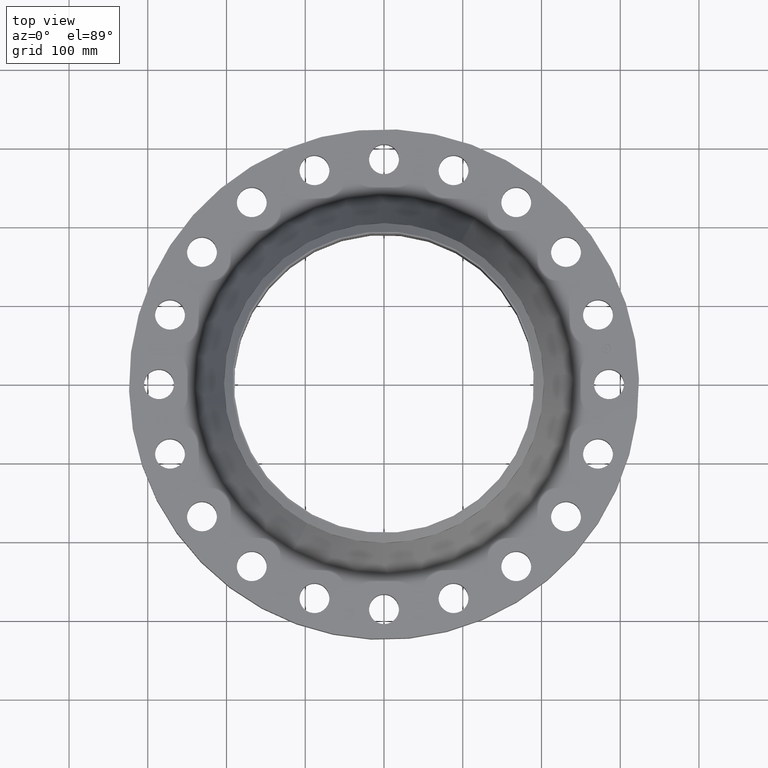
[diagram: clean part render]
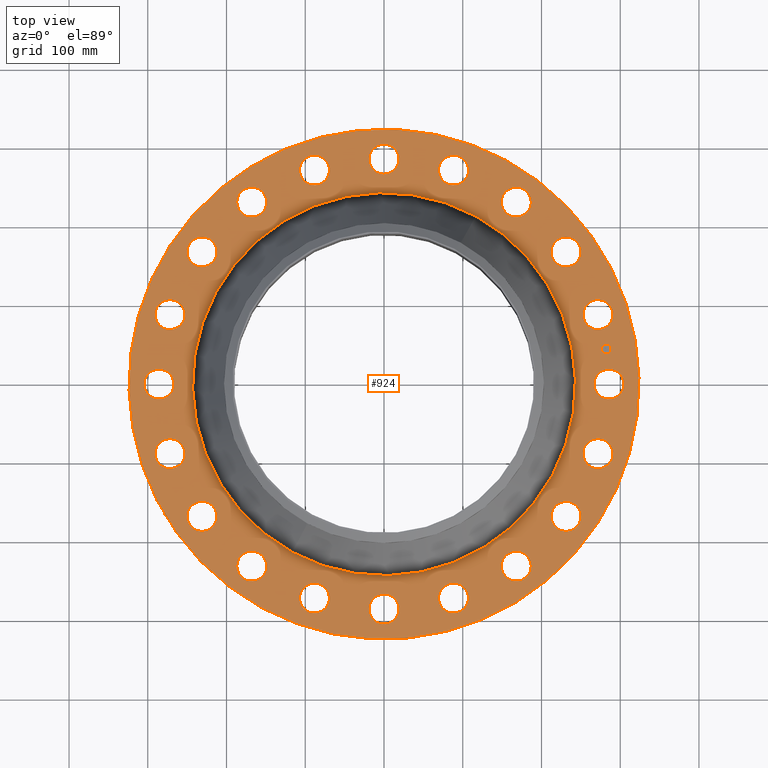
[diagram: same view with one face highlighted and labeled with its STEP entity id]
A machine part, top view. The second image highlights one B-rep face of the part: STEP entity #924.
In plain terms, the highlighted planar face has unit normal (0, 0, -1).
Its self-contained STEP definition (entity closure, byte-faithful):
#65=AXIS2_PLACEMENT_3D('Circle Axis2P3D',#63,#64,$) ;
#522=AXIS2_PLACEMENT_3D('Plane Axis2P3D',#519,#520,#521) ;
#526=AXIS2_PLACEMENT_3D('Circle Axis2P3D',#524,#525,$) ;
#535=AXIS2_PLACEMENT_3D('Circle Axis2P3D',#533,#534,$) ;
#548=AXIS2_PLACEMENT_3D('Circle Axis2P3D',#546,#547,$) ;
#557=AXIS2_PLACEMENT_3D('Circle Axis2P3D',#555,#556,$) ;
#566=AXIS2_PLACEMENT_3D('Circle Axis2P3D',#564,#565,$) ;
#575=AXIS2_PLACEMENT_3D('Circle Axis2P3D',#573,#574,$) ;
#584=AXIS2_PLACEMENT_3D('Circle Axis2P3D',#582,#583,$) ;
#593=AXIS2_PLACEMENT_3D('Circle Axis2P3D',#591,#592,$) ;
#602=AXIS2_PLACEMENT_3D('Circle Axis2P3D',#600,#601,$) ;
#611=AXIS2_PLACEMENT_3D('Circle Axis2P3D',#609,#610,$) ;
#620=AXIS2_PLACEMENT_3D('Circle Axis2P3D',#618,#619,$) ;
#629=AXIS2_PLACEMENT_3D('Circle Axis2P3D',#627,#628,$) ;
#638=AXIS2_PLACEMENT_3D('Circle Axis2P3D',#636,#637,$) ;
#647=AXIS2_PLACEMENT_3D('Circle Axis2P3D',#645,#646,$) ;
#656=AXIS2_PLACEMENT_3D('Circle Axis2P3D',#654,#655,$) ;
#665=AXIS2_PLACEMENT_3D('Circle Axis2P3D',#663,#664,$) ;
#674=AXIS2_PLACEMENT_3D('Circle Axis2P3D',#672,#673,$) ;
#683=AXIS2_PLACEMENT_3D('Circle Axis2P3D',#681,#682,$) ;
#692=AXIS2_PLACEMENT_3D('Circle Axis2P3D',#690,#691,$) ;
#701=AXIS2_PLACEMENT_3D('Circle Axis2P3D',#699,#700,$) ;
#710=AXIS2_PLACEMENT_3D('Circle Axis2P3D',#708,#709,$) ;
#719=AXIS2_PLACEMENT_3D('Circle Axis2P3D',#717,#718,$) ;
#728=AXIS2_PLACEMENT_3D('Circle Axis2P3D',#726,#727,$) ;
#737=AXIS2_PLACEMENT_3D('Circle Axis2P3D',#735,#736,$) ;
#746=AXIS2_PLACEMENT_3D('Circle Axis2P3D',#744,#745,$) ;
#755=AXIS2_PLACEMENT_3D('Circle Axis2P3D',#753,#754,$) ;
#764=AXIS2_PLACEMENT_3D('Circle Axis2P3D',#762,#763,$) ;
#773=AXIS2_PLACEMENT_3D('Circle Axis2P3D',#771,#772,$) ;
#782=AXIS2_PLACEMENT_3D('Circle Axis2P3D',#780,#781,$) ;
#791=AXIS2_PLACEMENT_3D('Circle Axis2P3D',#789,#790,$) ;
#800=AXIS2_PLACEMENT_3D('Circle Axis2P3D',#798,#799,$) ;
#809=AXIS2_PLACEMENT_3D('Circle Axis2P3D',#807,#808,$) ;
#818=AXIS2_PLACEMENT_3D('Circle Axis2P3D',#816,#817,$) ;
#827=AXIS2_PLACEMENT_3D('Circle Axis2P3D',#825,#826,$) ;
#836=AXIS2_PLACEMENT_3D('Circle Axis2P3D',#834,#835,$) ;
#845=AXIS2_PLACEMENT_3D('Circle Axis2P3D',#843,#844,$) ;
#854=AXIS2_PLACEMENT_3D('Circle Axis2P3D',#852,#853,$) ;
#863=AXIS2_PLACEMENT_3D('Circle Axis2P3D',#861,#862,$) ;
#872=AXIS2_PLACEMENT_3D('Circle Axis2P3D',#870,#871,$) ;
#881=AXIS2_PLACEMENT_3D('Circle Axis2P3D',#879,#880,$) ;
#890=AXIS2_PLACEMENT_3D('Circle Axis2P3D',#888,#889,$) ;
#899=AXIS2_PLACEMENT_3D('Circle Axis2P3D',#897,#898,$) ;
#908=AXIS2_PLACEMENT_3D('Circle Axis2P3D',#906,#907,$) ;
#917=AXIS2_PLACEMENT_3D('Circle Axis2P3D',#915,#916,$) ;
#46=CARTESIAN_POINT('Vertex',(10.5918130786,0.359569153955,2.5)) ;
#60=CARTESIAN_POINT('Vertex',(11.9081869214,-0.359569153921,2.5)) ;
#63=CARTESIAN_POINT('Axis2P3D Location',(11.25,0.,2.5)) ;
#94=CARTESIAN_POINT('Control Point',(11.9081869214,-0.359569153955,2.5)) ;
#95=CARTESIAN_POINT('Control Point',(11.8517059308,-0.462956913806,2.5)) ;
#96=CARTESIAN_POINT('Control Point',(11.774924801,-0.555254657081,2.5)) ;
#97=CARTESIAN_POINT('Control Point',(11.6807306633,-0.631129841291,2.5)) ;
#98=CARTESIAN_POINT('Control Point',(11.4676671885,-0.741858414487,2.5)) ;
#99=CARTESIAN_POINT('Control Point',(11.2285535531,-0.763802219702,2.5)) ;
#100=CARTESIAN_POINT('Control Point',(11.1082963823,-0.750848763496,2.5)) ;
#101=CARTESIAN_POINT('Control Point',(10.8793408295,-0.678487060596,2.5)) ;
#102=CARTESIAN_POINT('Control Point',(10.6947453429,-0.524924800992,2.50000000001)) ;
#103=CARTESIAN_POINT('Control Point',(10.6188701587,-0.430730663336,2.50000000001)) ;
#104=CARTESIAN_POINT('Control Point',(10.5081415855,-0.217667188504,2.50000000001)) ;
#105=CARTESIAN_POINT('Control Point',(10.4861977803,0.021446446913,2.50000000001)) ;
#106=CARTESIAN_POINT('Control Point',(10.4991512365,0.141703617676,2.50000000001)) ;
#107=CARTESIAN_POINT('Control Point',(10.535332088,0.256181394104,2.50000000001)) ;
#108=CARTESIAN_POINT('Control Point',(10.5918130786,0.359569153955,2.50000000001)) ;
#519=CARTESIAN_POINT('Axis2P3D Location',(0.,12.7500000001,2.50000000001)) ;
#524=CARTESIAN_POINT('Axis2P3D Location',(-1.28099106126E-011,1.16685663756E-011,2.50000000001)) ;
#528=CARTESIAN_POINT('Vertex',(6.11267561726,11.1891776642,2.5)) ;
#530=CARTESIAN_POINT('Vertex',(-6.11267561726,-11.1891776642,2.5)) ;
#533=CARTESIAN_POINT('Axis2P3D Location',(1.28099106126E-011,-2.33192293122E-012,2.50000000001)) ;
#546=CARTESIAN_POINT('Axis2P3D Location',(4.36631308537E-011,-1.91880107603E-011,2.50000000001)) ;
#550=CARTESIAN_POINT('Vertex',(-4.58977930648,-8.40153466588,2.50000000001)) ;
#552=CARTESIAN_POINT('Vertex',(4.58977930648,8.40153466588,2.50000000001)) ;
#555=CARTESIAN_POINT('Axis2P3D Location',(-4.36631308537E-011,2.85246542047E-011,2.50000000001)) ;
#564=CARTESIAN_POINT('Axis2P3D Location',(10.6993858084,-3.47644118672,2.50000000001)) ;
#568=CARTESIAN_POINT('Vertex',(11.2142457897,-4.02180271784,2.50000000001)) ;
#570=CARTESIAN_POINT('Vertex',(10.1845258271,-2.93107965561,2.5)) ;
#573=CARTESIAN_POINT('Axis2P3D Location',(10.6993858084,-3.47644118672,2.50000000001)) ;
#582=CARTESIAN_POINT('Axis2P3D Location',(9.10144118678,-6.61258408832,2.50000000001)) ;
#586=CARTESIAN_POINT('Vertex',(9.42257614579,-7.29035421018,2.5)) ;
#588=CARTESIAN_POINT('Vertex',(8.78030622772,-5.93481396646,2.5)) ;
#591=CARTESIAN_POINT('Axis2P3D Location',(9.10144118675,-6.61258408833,2.50000000001)) ;
#600=CARTESIAN_POINT('Axis2P3D Location',(6.61258408829,-9.10144118677,2.50000000001)) ;
#604=CARTESIAN_POINT('Vertex',(6.70855909777,-9.84527503752,2.50000000001)) ;
#606=CARTESIAN_POINT('Vertex',(6.51660907886,-8.35760733597,2.5)) ;
#609=CARTESIAN_POINT('Axis2P3D Location',(6.61258408837,-9.10144118675,2.50000000001)) ;
#618=CARTESIAN_POINT('Axis2P3D Location',(3.47644118673,-10.6993858084,2.50000000001)) ;
#622=CARTESIAN_POINT('Vertex',(3.33786154401,-11.4364717482,2.50000000001)) ;
#624=CARTESIAN_POINT('Vertex',(3.61502082946,-9.96229986862,2.5)) ;
#627=CARTESIAN_POINT('Axis2P3D Location',(3.47644118673,-10.6993858084,2.50000000001)) ;
#636=CARTESIAN_POINT('Axis2P3D Location',(4.36652988483E-011,-11.25,2.50000000001)) ;
#640=CARTESIAN_POINT('Vertex',(-0.359569153921,-11.9081869214,2.5)) ;
#642=CARTESIAN_POINT('Vertex',(0.359569153955,-10.5918130786,2.5)) ;
#645=CARTESIAN_POINT('Axis2P3D Location',(-1.281158906E-011,-11.25,2.50000000001)) ;
#654=CARTESIAN_POINT('Axis2P3D Location',(-3.47644118673,-10.6993858084,2.50000000001)) ;
#658=CARTESIAN_POINT('Vertex',(-4.02180271788,-11.2142457897,2.50000000001)) ;
#660=CARTESIAN_POINT('Vertex',(-2.93107965561,-10.1845258271,2.5)) ;
#663=CARTESIAN_POINT('Axis2P3D Location',(-3.47644118673,-10.6993858084,2.50000000001)) ;
#672=CARTESIAN_POINT('Axis2P3D Location',(-6.61258408834,-9.10144118674,2.50000000001)) ;
#676=CARTESIAN_POINT('Vertex',(-7.29035421018,-9.42257614579,2.5)) ;
#678=CARTESIAN_POINT('Vertex',(-5.93481396646,-8.78030622772,2.5)) ;
#681=CARTESIAN_POINT('Axis2P3D Location',(-6.61258408832,-9.10144118678,2.50000000001)) ;
#690=CARTESIAN_POINT('Axis2P3D Location',(-9.10144118676,-6.61258408836,2.50000000001)) ;
#694=CARTESIAN_POINT('Vertex',(-9.84527503756,-6.7085590978,2.50000000001)) ;
#696=CARTESIAN_POINT('Vertex',(-8.35760733597,-6.51660907886,2.5)) ;
#699=CARTESIAN_POINT('Axis2P3D Location',(-9.10144118677,-6.61258408829,2.50000000001)) ;
#708=CARTESIAN_POINT('Axis2P3D Location',(-10.6993858084,-3.47644118672,2.50000000001)) ;
#712=CARTESIAN_POINT('Vertex',(-11.4364717482,-3.33786154396,2.50000000001)) ;
#714=CARTESIAN_POINT('Vertex',(-9.96229986862,-3.61502082946,2.5)) ;
#717=CARTESIAN_POINT('Axis2P3D Location',(-10.6993858084,-3.47644118672,2.50000000001)) ;
#726=CARTESIAN_POINT('Axis2P3D Location',(-11.25,1.16685663756E-011,2.50000000001)) ;
#730=CARTESIAN_POINT('Vertex',(-11.9081869214,0.359569153921,2.5)) ;
#732=CARTESIAN_POINT('Vertex',(-10.5918130786,-0.359569153955,2.5)) ;
#735=CARTESIAN_POINT('Axis2P3D Location',(-11.25,1.16663284457E-011,2.50000000001)) ;
#744=CARTESIAN_POINT('Axis2P3D Location',(-10.6993858084,3.47644118673,2.50000000001)) ;
#748=CARTESIAN_POINT('Vertex',(-11.2142457897,4.02180271785,2.50000000001)) ;
#750=CARTESIAN_POINT('Vertex',(-10.1845258271,2.93107965561,2.5)) ;
#753=CARTESIAN_POINT('Axis2P3D Location',(-10.6993858084,3.47644118673,2.50000000001)) ;
#762=CARTESIAN_POINT('Axis2P3D Location',(-9.10144118676,6.6125840883,2.50000000001)) ;
#766=CARTESIAN_POINT('Vertex',(-9.42257614579,7.29035421018,2.5)) ;
#768=CARTESIAN_POINT('Vertex',(-8.78030622772,5.93481396646,2.5)) ;
#771=CARTESIAN_POINT('Axis2P3D Location',(-9.10144118676,6.6125840883,2.50000000001)) ;
#780=CARTESIAN_POINT('Axis2P3D Location',(-6.61258408829,9.10144118677,2.50000000001)) ;
#784=CARTESIAN_POINT('Vertex',(-6.70855909777,9.84527503753,2.50000000001)) ;
#786=CARTESIAN_POINT('Vertex',(-6.51660907886,8.35760733597,2.5)) ;
#789=CARTESIAN_POINT('Axis2P3D Location',(-6.61258408837,9.10144118676,2.50000000001)) ;
#798=CARTESIAN_POINT('Axis2P3D Location',(-3.47644118673,10.6993858084,2.50000000001)) ;
#802=CARTESIAN_POINT('Vertex',(-3.33786154401,11.4364717482,2.50000000001)) ;
#804=CARTESIAN_POINT('Vertex',(-3.61502082946,9.96229986862,2.5)) ;
#807=CARTESIAN_POINT('Axis2P3D Location',(-3.47644118673,10.6993858084,2.50000000001)) ;
#816=CARTESIAN_POINT('Axis2P3D Location',(-1.281158906E-011,11.25,2.50000000001)) ;
#820=CARTESIAN_POINT('Vertex',(0.359569153921,11.9081869214,2.5)) ;
#822=CARTESIAN_POINT('Vertex',(-0.359569153955,10.5918130786,2.5)) ;
#825=CARTESIAN_POINT('Axis2P3D Location',(4.36652988483E-011,11.25,2.50000000001)) ;
#834=CARTESIAN_POINT('Axis2P3D Location',(3.47644118673,10.6993858084,2.50000000001)) ;
#838=CARTESIAN_POINT('Vertex',(4.02180271788,11.2142457897,2.50000000001)) ;
#840=CARTESIAN_POINT('Vertex',(2.93107965561,10.1845258271,2.5)) ;
#843=CARTESIAN_POINT('Axis2P3D Location',(3.47644118673,10.6993858084,2.50000000001)) ;
#852=CARTESIAN_POINT('Axis2P3D Location',(6.61258408833,9.10144118673,2.50000000001)) ;
#856=CARTESIAN_POINT('Vertex',(7.29035421018,9.42257614579,2.5)) ;
#858=CARTESIAN_POINT('Vertex',(5.93481396646,8.78030622772,2.5)) ;
#861=CARTESIAN_POINT('Axis2P3D Location',(6.61258408833,9.10144118673,2.50000000001)) ;
#870=CARTESIAN_POINT('Axis2P3D Location',(9.10144118676,6.61258408837,2.50000000001)) ;
#874=CARTESIAN_POINT('Vertex',(9.84527503756,6.70855909781,2.50000000001)) ;
#876=CARTESIAN_POINT('Vertex',(8.35760733597,6.51660907886,2.5)) ;
#879=CARTESIAN_POINT('Axis2P3D Location',(9.10144118677,6.6125840883,2.50000000001)) ;
#888=CARTESIAN_POINT('Axis2P3D Location',(10.6993858084,3.47644118673,2.50000000001)) ;
#892=CARTESIAN_POINT('Vertex',(11.4364717482,3.33786154397,2.50000000001)) ;
#894=CARTESIAN_POINT('Vertex',(9.96229986862,3.61502082946,2.5)) ;
#897=CARTESIAN_POINT('Axis2P3D Location',(10.6993858084,3.47644118673,2.50000000001)) ;
#906=CARTESIAN_POINT('Axis2P3D Location',(11.1114938317,1.7598877317,2.50000000001)) ;
#910=CARTESIAN_POINT('Vertex',(11.0727763016,2.00434059598,2.50000000001)) ;
#912=CARTESIAN_POINT('Vertex',(11.1502113618,1.51543486743,2.50000000001)) ;
#915=CARTESIAN_POINT('Axis2P3D Location',(11.1114938317,1.7598877317,2.50000000001)) ;
#64=DIRECTION('Axis2P3D Direction',(0.,-0.,-0.0393700787402)) ;
#520=DIRECTION('Axis2P3D Direction',(0.,0.,-0.0393700787402)) ;
#521=DIRECTION('Axis2P3D XDirection',(0.0393700787402,0.,0.)) ;
#525=DIRECTION('Axis2P3D Direction',(0.,0.,-0.0393700787402)) ;
#534=DIRECTION('Axis2P3D Direction',(0.,0.,-0.0393700787402)) ;
#547=DIRECTION('Axis2P3D Direction',(0.,0.,-0.0393700787402)) ;
#556=DIRECTION('Axis2P3D Direction',(0.,0.,-0.0393700787402)) ;
#565=DIRECTION('Axis2P3D Direction',(0.,0.,-0.0393700787402)) ;
#574=DIRECTION('Axis2P3D Direction',(0.,0.,-0.0393700787402)) ;
#583=DIRECTION('Axis2P3D Direction',(0.,0.,-0.0393700787402)) ;
#592=DIRECTION('Axis2P3D Direction',(0.,0.,-0.0393700787402)) ;
#601=DIRECTION('Axis2P3D Direction',(0.,0.,-0.0393700787402)) ;
#610=DIRECTION('Axis2P3D Direction',(0.,0.,-0.0393700787402)) ;
#619=DIRECTION('Axis2P3D Direction',(0.,0.,-0.0393700787402)) ;
#628=DIRECTION('Axis2P3D Direction',(0.,0.,-0.0393700787402)) ;
#637=DIRECTION('Axis2P3D Direction',(0.,0.,-0.0393700787402)) ;
#646=DIRECTION('Axis2P3D Direction',(0.,0.,-0.0393700787402)) ;
#655=DIRECTION('Axis2P3D Direction',(0.,0.,-0.0393700787402)) ;
#664=DIRECTION('Axis2P3D Direction',(0.,0.,-0.0393700787402)) ;
#673=DIRECTION('Axis2P3D Direction',(0.,0.,-0.0393700787402)) ;
#682=DIRECTION('Axis2P3D Direction',(0.,0.,-0.0393700787402)) ;
#691=DIRECTION('Axis2P3D Direction',(0.,0.,-0.0393700787402)) ;
#700=DIRECTION('Axis2P3D Direction',(0.,0.,-0.0393700787402)) ;
#709=DIRECTION('Axis2P3D Direction',(0.,0.,-0.0393700787402)) ;
#718=DIRECTION('Axis2P3D Direction',(0.,0.,-0.0393700787402)) ;
#727=DIRECTION('Axis2P3D Direction',(0.,0.,-0.0393700787402)) ;
#736=DIRECTION('Axis2P3D Direction',(0.,0.,-0.0393700787402)) ;
#745=DIRECTION('Axis2P3D Direction',(0.,0.,-0.0393700787402)) ;
#754=DIRECTION('Axis2P3D Direction',(0.,0.,-0.0393700787402)) ;
#763=DIRECTION('Axis2P3D Direction',(0.,0.,-0.0393700787402)) ;
#772=DIRECTION('Axis2P3D Direction',(0.,0.,-0.0393700787402)) ;
#781=DIRECTION('Axis2P3D Direction',(0.,0.,-0.0393700787402)) ;
#790=DIRECTION('Axis2P3D Direction',(0.,0.,-0.0393700787402)) ;
#799=DIRECTION('Axis2P3D Direction',(0.,0.,-0.0393700787402)) ;
#808=DIRECTION('Axis2P3D Direction',(0.,0.,-0.0393700787402)) ;
#817=DIRECTION('Axis2P3D Direction',(0.,0.,-0.0393700787402)) ;
#826=DIRECTION('Axis2P3D Direction',(0.,0.,-0.0393700787402)) ;
#835=DIRECTION('Axis2P3D Direction',(0.,0.,-0.0393700787402)) ;
#844=DIRECTION('Axis2P3D Direction',(0.,0.,-0.0393700787402)) ;
#853=DIRECTION('Axis2P3D Direction',(0.,0.,-0.0393700787402)) ;
#862=DIRECTION('Axis2P3D Direction',(0.,0.,-0.0393700787402)) ;
#871=DIRECTION('Axis2P3D Direction',(0.,0.,-0.0393700787402)) ;
#880=DIRECTION('Axis2P3D Direction',(0.,0.,-0.0393700787402)) ;
#889=DIRECTION('Axis2P3D Direction',(0.,0.,-0.0393700787402)) ;
#898=DIRECTION('Axis2P3D Direction',(0.,0.,-0.0393700787402)) ;
#907=DIRECTION('Axis2P3D Direction',(0.,0.,-0.0393700787402)) ;
#916=DIRECTION('Axis2P3D Direction',(0.,0.,-0.0393700787402)) ;
#539=ORIENTED_EDGE('',*,*,#532,.F.) ;
#540=ORIENTED_EDGE('',*,*,#537,.F.) ;
#543=ORIENTED_EDGE('',*,*,#67,.T.) ;
#544=ORIENTED_EDGE('',*,*,#109,.T.) ;
#561=ORIENTED_EDGE('',*,*,#554,.T.) ;
#562=ORIENTED_EDGE('',*,*,#559,.T.) ;
#579=ORIENTED_EDGE('',*,*,#572,.T.) ;
#580=ORIENTED_EDGE('',*,*,#577,.T.) ;
#597=ORIENTED_EDGE('',*,*,#590,.T.) ;
#598=ORIENTED_EDGE('',*,*,#595,.T.) ;
#615=ORIENTED_EDGE('',*,*,#608,.T.) ;
#616=ORIENTED_EDGE('',*,*,#613,.T.) ;
#633=ORIENTED_EDGE('',*,*,#626,.T.) ;
#634=ORIENTED_EDGE('',*,*,#631,.T.) ;
#651=ORIENTED_EDGE('',*,*,#644,.T.) ;
#652=ORIENTED_EDGE('',*,*,#649,.T.) ;
#669=ORIENTED_EDGE('',*,*,#662,.T.) ;
#670=ORIENTED_EDGE('',*,*,#667,.T.) ;
#687=ORIENTED_EDGE('',*,*,#680,.T.) ;
#688=ORIENTED_EDGE('',*,*,#685,.T.) ;
#705=ORIENTED_EDGE('',*,*,#698,.T.) ;
#706=ORIENTED_EDGE('',*,*,#703,.T.) ;
#723=ORIENTED_EDGE('',*,*,#716,.T.) ;
#724=ORIENTED_EDGE('',*,*,#721,.T.) ;
#741=ORIENTED_EDGE('',*,*,#734,.T.) ;
#742=ORIENTED_EDGE('',*,*,#739,.T.) ;
#759=ORIENTED_EDGE('',*,*,#752,.T.) ;
#760=ORIENTED_EDGE('',*,*,#757,.T.) ;
#777=ORIENTED_EDGE('',*,*,#770,.T.) ;
#778=ORIENTED_EDGE('',*,*,#775,.T.) ;
#795=ORIENTED_EDGE('',*,*,#788,.T.) ;
#796=ORIENTED_EDGE('',*,*,#793,.T.) ;
#813=ORIENTED_EDGE('',*,*,#806,.T.) ;
#814=ORIENTED_EDGE('',*,*,#811,.T.) ;
#831=ORIENTED_EDGE('',*,*,#824,.T.) ;
#832=ORIENTED_EDGE('',*,*,#829,.T.) ;
#849=ORIENTED_EDGE('',*,*,#842,.T.) ;
#850=ORIENTED_EDGE('',*,*,#847,.T.) ;
#867=ORIENTED_EDGE('',*,*,#860,.T.) ;
#868=ORIENTED_EDGE('',*,*,#865,.T.) ;
#885=ORIENTED_EDGE('',*,*,#878,.T.) ;
#886=ORIENTED_EDGE('',*,*,#883,.T.) ;
#903=ORIENTED_EDGE('',*,*,#896,.T.) ;
#904=ORIENTED_EDGE('',*,*,#901,.T.) ;
#921=ORIENTED_EDGE('',*,*,#914,.T.) ;
#922=ORIENTED_EDGE('',*,*,#919,.T.) ;
#545=FACE_BOUND('',#542,.T.) ;
#563=FACE_BOUND('',#560,.T.) ;
#581=FACE_BOUND('',#578,.T.) ;
#599=FACE_BOUND('',#596,.T.) ;
#617=FACE_BOUND('',#614,.T.) ;
#635=FACE_BOUND('',#632,.T.) ;
#653=FACE_BOUND('',#650,.T.) ;
#671=FACE_BOUND('',#668,.T.) ;
#689=FACE_BOUND('',#686,.T.) ;
#707=FACE_BOUND('',#704,.T.) ;
#725=FACE_BOUND('',#722,.T.) ;
#743=FACE_BOUND('',#740,.T.) ;
#761=FACE_BOUND('',#758,.T.) ;
#779=FACE_BOUND('',#776,.T.) ;
#797=FACE_BOUND('',#794,.T.) ;
#815=FACE_BOUND('',#812,.T.) ;
#833=FACE_BOUND('',#830,.T.) ;
#851=FACE_BOUND('',#848,.T.) ;
#869=FACE_BOUND('',#866,.T.) ;
#887=FACE_BOUND('',#884,.T.) ;
#905=FACE_BOUND('',#902,.T.) ;
#923=FACE_BOUND('',#920,.T.) ;
#924=ADVANCED_FACE('PartBody',(#541,#545,#563,#581,#599,#617,#635,#653,#671,#689,#707,#725,#743,#761,#779,#797,#815,#833,#851,#869,#887,#905,#923),#523,.F.) ;
#93=B_SPLINE_CURVE_WITH_KNOTS('',5,(#94,#95,#96,#97,#98,#99,#100,#101,#102,#103,#104,#105,#106,#107,#108),.UNSPECIFIED.,.F.,.U.,(6,3,3,3,6),(-29.9236700256,-14.9618350128,0.,14.9618350128,29.9236700256),.UNSPECIFIED.) ;
#66=CIRCLE('generated circle',#65,0.750000000003) ;
#527=CIRCLE('generated circle',#526,12.7500000001) ;
#536=CIRCLE('generated circle',#535,12.7500000001) ;
#549=CIRCLE('generated circle',#548,9.57349773202) ;
#558=CIRCLE('generated circle',#557,9.57349773202) ;
#567=CIRCLE('generated circle',#566,0.750000000005) ;
#576=CIRCLE('generated circle',#575,0.750000000005) ;
#585=CIRCLE('generated circle',#584,0.750000000022) ;
#594=CIRCLE('generated circle',#593,0.750000000022) ;
#603=CIRCLE('generated circle',#602,0.749999999983) ;
#612=CIRCLE('generated circle',#611,0.749999999983) ;
#621=CIRCLE('generated circle',#620,0.749999999993) ;
#630=CIRCLE('generated circle',#629,0.749999999993) ;
#639=CIRCLE('generated circle',#638,0.750000000009) ;
#648=CIRCLE('generated circle',#647,0.750000000009) ;
#657=CIRCLE('generated circle',#656,0.750000000005) ;
#666=CIRCLE('generated circle',#665,0.750000000005) ;
#675=CIRCLE('generated circle',#674,0.750000000004) ;
#684=CIRCLE('generated circle',#683,0.750000000004) ;
#693=CIRCLE('generated circle',#692,0.750000000024) ;
#702=CIRCLE('generated circle',#701,0.750000000024) ;
#711=CIRCLE('generated circle',#710,0.750000000036) ;
#720=CIRCLE('generated circle',#719,0.750000000036) ;
#729=CIRCLE('generated circle',#728,0.750000000009) ;
#738=CIRCLE('generated circle',#737,0.750000000009) ;
#747=CIRCLE('generated circle',#746,0.750000000005) ;
#756=CIRCLE('generated circle',#755,0.750000000005) ;
#765=CIRCLE('generated circle',#764,0.749999999989) ;
#774=CIRCLE('generated circle',#773,0.749999999989) ;
#783=CIRCLE('generated circle',#782,0.749999999983) ;
#792=CIRCLE('generated circle',#791,0.749999999983) ;
#801=CIRCLE('generated circle',#800,0.749999999993) ;
#810=CIRCLE('generated circle',#809,0.749999999993) ;
#819=CIRCLE('generated circle',#818,0.750000000009) ;
#828=CIRCLE('generated circle',#827,0.750000000009) ;
#837=CIRCLE('generated circle',#836,0.750000000005) ;
#846=CIRCLE('generated circle',#845,0.750000000005) ;
#855=CIRCLE('generated circle',#854,0.749999999989) ;
#864=CIRCLE('generated circle',#863,0.749999999989) ;
#873=CIRCLE('generated circle',#872,0.750000000024) ;
#882=CIRCLE('generated circle',#881,0.750000000024) ;
#891=CIRCLE('generated circle',#890,0.750000000036) ;
#900=CIRCLE('generated circle',#899,0.750000000036) ;
#909=CIRCLE('generated circle',#908,0.247499999978) ;
#918=CIRCLE('generated circle',#917,0.247499999978) ;
#67=EDGE_CURVE('',#47,#61,#66,.T.) ;
#109=EDGE_CURVE('',#61,#47,#93,.T.) ;
#532=EDGE_CURVE('',#529,#531,#527,.T.) ;
#537=EDGE_CURVE('',#531,#529,#536,.T.) ;
#554=EDGE_CURVE('',#551,#553,#549,.T.) ;
#559=EDGE_CURVE('',#553,#551,#558,.T.) ;
#572=EDGE_CURVE('',#569,#571,#567,.T.) ;
#577=EDGE_CURVE('',#571,#569,#576,.T.) ;
#590=EDGE_CURVE('',#587,#589,#585,.T.) ;
#595=EDGE_CURVE('',#589,#587,#594,.T.) ;
#608=EDGE_CURVE('',#605,#607,#603,.T.) ;
#613=EDGE_CURVE('',#607,#605,#612,.T.) ;
#626=EDGE_CURVE('',#623,#625,#621,.T.) ;
#631=EDGE_CURVE('',#625,#623,#630,.T.) ;
#644=EDGE_CURVE('',#641,#643,#639,.T.) ;
#649=EDGE_CURVE('',#643,#641,#648,.T.) ;
#662=EDGE_CURVE('',#659,#661,#657,.T.) ;
#667=EDGE_CURVE('',#661,#659,#666,.T.) ;
#680=EDGE_CURVE('',#677,#679,#675,.T.) ;
#685=EDGE_CURVE('',#679,#677,#684,.T.) ;
#698=EDGE_CURVE('',#695,#697,#693,.T.) ;
#703=EDGE_CURVE('',#697,#695,#702,.T.) ;
#716=EDGE_CURVE('',#713,#715,#711,.T.) ;
#721=EDGE_CURVE('',#715,#713,#720,.T.) ;
#734=EDGE_CURVE('',#731,#733,#729,.T.) ;
#739=EDGE_CURVE('',#733,#731,#738,.T.) ;
#752=EDGE_CURVE('',#749,#751,#747,.T.) ;
#757=EDGE_CURVE('',#751,#749,#756,.T.) ;
#770=EDGE_CURVE('',#767,#769,#765,.T.) ;
#775=EDGE_CURVE('',#769,#767,#774,.T.) ;
#788=EDGE_CURVE('',#785,#787,#783,.T.) ;
#793=EDGE_CURVE('',#787,#785,#792,.T.) ;
#806=EDGE_CURVE('',#803,#805,#801,.T.) ;
#811=EDGE_CURVE('',#805,#803,#810,.T.) ;
#824=EDGE_CURVE('',#821,#823,#819,.T.) ;
#829=EDGE_CURVE('',#823,#821,#828,.T.) ;
#842=EDGE_CURVE('',#839,#841,#837,.T.) ;
#847=EDGE_CURVE('',#841,#839,#846,.T.) ;
#860=EDGE_CURVE('',#857,#859,#855,.T.) ;
#865=EDGE_CURVE('',#859,#857,#864,.T.) ;
#878=EDGE_CURVE('',#875,#877,#873,.T.) ;
#883=EDGE_CURVE('',#877,#875,#882,.T.) ;
#896=EDGE_CURVE('',#893,#895,#891,.T.) ;
#901=EDGE_CURVE('',#895,#893,#900,.T.) ;
#914=EDGE_CURVE('',#911,#913,#909,.T.) ;
#919=EDGE_CURVE('',#913,#911,#918,.T.) ;
#538=EDGE_LOOP('',(#539,#540)) ;
#542=EDGE_LOOP('',(#543,#544)) ;
#560=EDGE_LOOP('',(#561,#562)) ;
#578=EDGE_LOOP('',(#579,#580)) ;
#596=EDGE_LOOP('',(#597,#598)) ;
#614=EDGE_LOOP('',(#615,#616)) ;
#632=EDGE_LOOP('',(#633,#634)) ;
#650=EDGE_LOOP('',(#651,#652)) ;
#668=EDGE_LOOP('',(#669,#670)) ;
#686=EDGE_LOOP('',(#687,#688)) ;
#704=EDGE_LOOP('',(#705,#706)) ;
#722=EDGE_LOOP('',(#723,#724)) ;
#740=EDGE_LOOP('',(#741,#742)) ;
#758=EDGE_LOOP('',(#759,#760)) ;
#776=EDGE_LOOP('',(#777,#778)) ;
#794=EDGE_LOOP('',(#795,#796)) ;
#812=EDGE_LOOP('',(#813,#814)) ;
#830=EDGE_LOOP('',(#831,#832)) ;
#848=EDGE_LOOP('',(#849,#850)) ;
#866=EDGE_LOOP('',(#867,#868)) ;
#884=EDGE_LOOP('',(#885,#886)) ;
#902=EDGE_LOOP('',(#903,#904)) ;
#920=EDGE_LOOP('',(#921,#922)) ;
#541=FACE_OUTER_BOUND('',#538,.T.) ;
#523=PLANE('',#522) ;
#47=VERTEX_POINT('',#46) ;
#61=VERTEX_POINT('',#60) ;
#529=VERTEX_POINT('',#528) ;
#531=VERTEX_POINT('',#530) ;
#551=VERTEX_POINT('',#550) ;
#553=VERTEX_POINT('',#552) ;
#569=VERTEX_POINT('',#568) ;
#571=VERTEX_POINT('',#570) ;
#587=VERTEX_POINT('',#586) ;
#589=VERTEX_POINT('',#588) ;
#605=VERTEX_POINT('',#604) ;
#607=VERTEX_POINT('',#606) ;
#623=VERTEX_POINT('',#622) ;
#625=VERTEX_POINT('',#624) ;
#641=VERTEX_POINT('',#640) ;
#643=VERTEX_POINT('',#642) ;
#659=VERTEX_POINT('',#658) ;
#661=VERTEX_POINT('',#660) ;
#677=VERTEX_POINT('',#676) ;
#679=VERTEX_POINT('',#678) ;
#695=VERTEX_POINT('',#694) ;
#697=VERTEX_POINT('',#696) ;
#713=VERTEX_POINT('',#712) ;
#715=VERTEX_POINT('',#714) ;
#731=VERTEX_POINT('',#730) ;
#733=VERTEX_POINT('',#732) ;
#749=VERTEX_POINT('',#748) ;
#751=VERTEX_POINT('',#750) ;
#767=VERTEX_POINT('',#766) ;
#769=VERTEX_POINT('',#768) ;
#785=VERTEX_POINT('',#784) ;
#787=VERTEX_POINT('',#786) ;
#803=VERTEX_POINT('',#802) ;
#805=VERTEX_POINT('',#804) ;
#821=VERTEX_POINT('',#820) ;
#823=VERTEX_POINT('',#822) ;
#839=VERTEX_POINT('',#838) ;
#841=VERTEX_POINT('',#840) ;
#857=VERTEX_POINT('',#856) ;
#859=VERTEX_POINT('',#858) ;
#875=VERTEX_POINT('',#874) ;
#877=VERTEX_POINT('',#876) ;
#893=VERTEX_POINT('',#892) ;
#895=VERTEX_POINT('',#894) ;
#911=VERTEX_POINT('',#910) ;
#913=VERTEX_POINT('',#912) ;